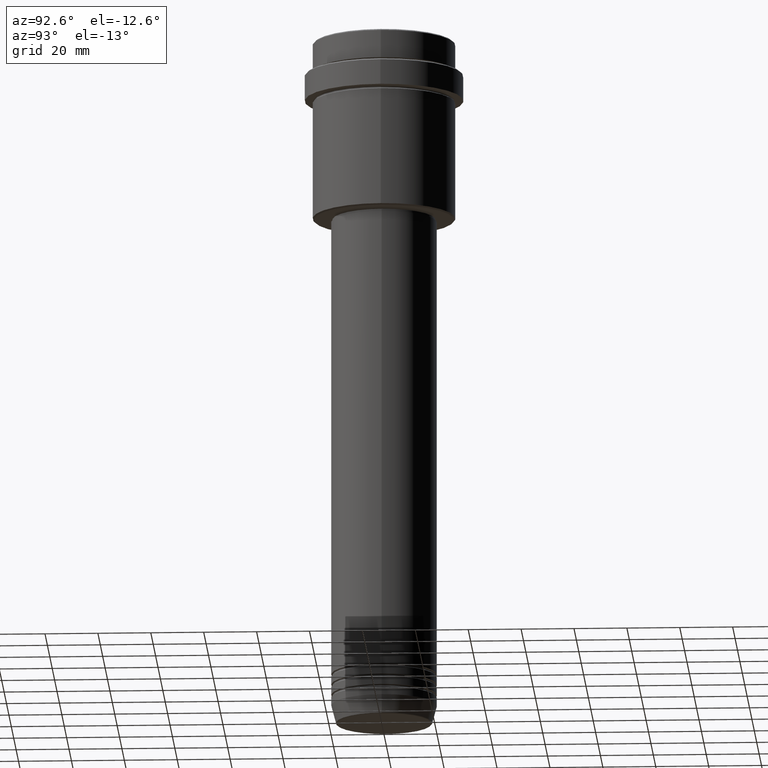
[diagram: clean part render]
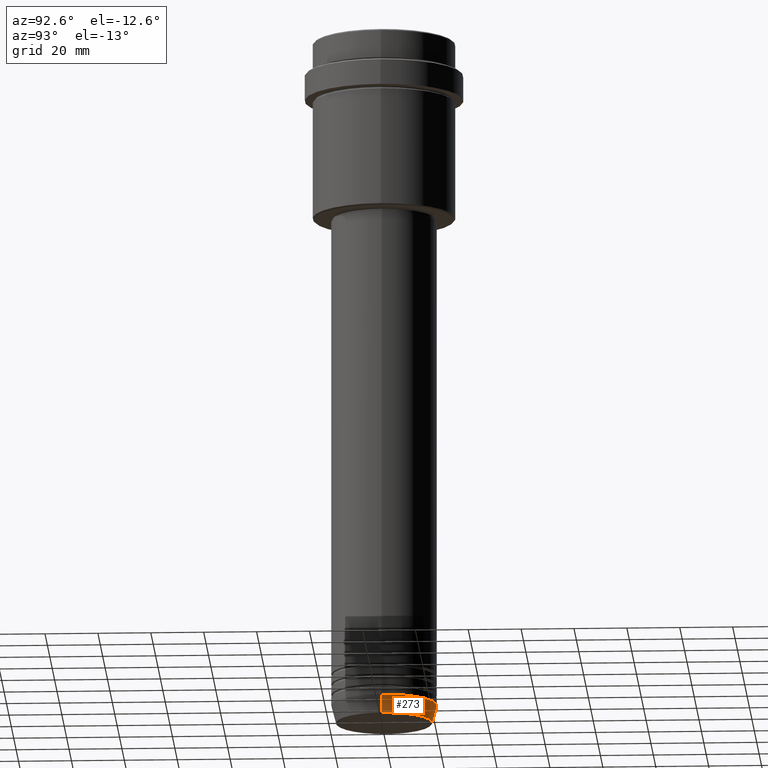
[diagram: same view with one face highlighted and labeled with its STEP entity id]
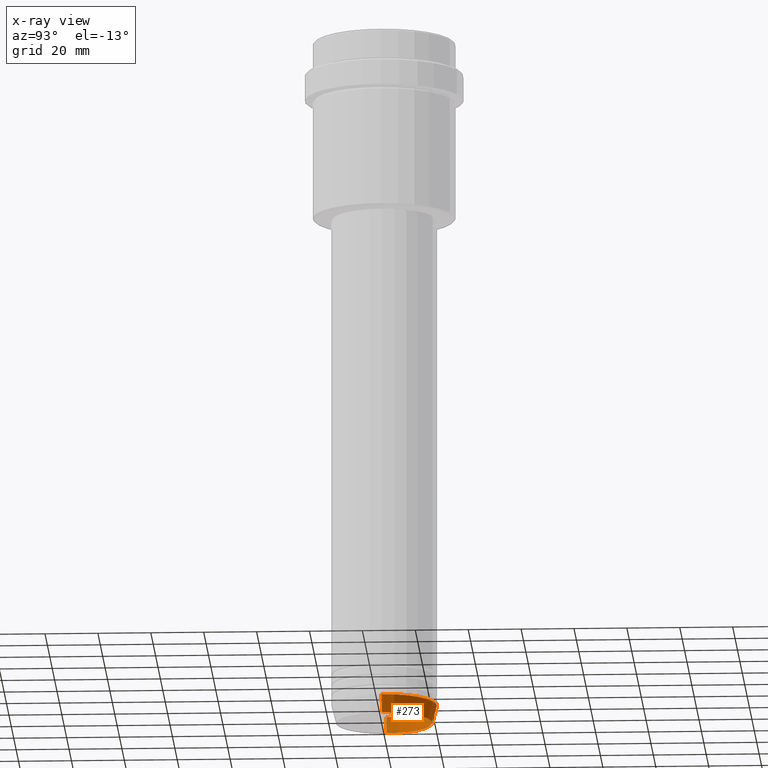
[diagram: x-ray of the same camera — body ghosted, the highlighted face saturated]
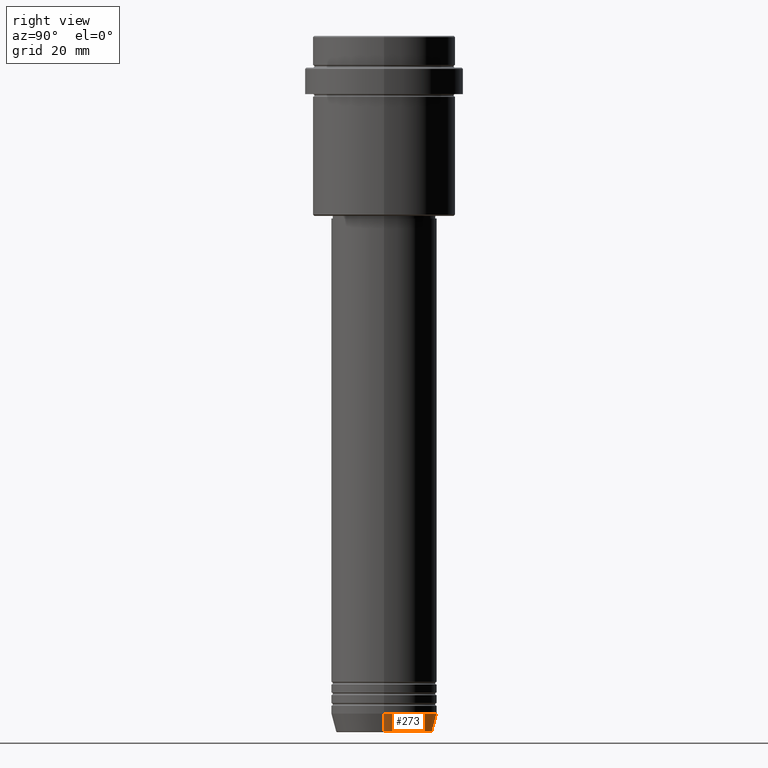
[diagram: same view with one face highlighted and labeled with its STEP entity id]
A machine part, auxiliary view. The second image highlights one B-rep face of the part: STEP entity #273.
The next image is the same camera in x-ray: the body ghosted, the highlighted face saturated — about 2% of this face is hidden behind the body in this view.
A second angle (right view) of the same face is appended — the face is thin or edge-on in the first view.
In plain terms, the highlighted conical surface has half-angle 15 deg.
Its self-contained STEP definition (entity closure, byte-faithful):
#27 = CARTESIAN_POINT ( 'NONE',  ( -20.00000000000000000, 2.449293598294706513E-15, -256.0000000000000000 ) ) ;
#102 = ORIENTED_EDGE ( 'NONE', *, *, #379, .T. ) ;
#131 = CARTESIAN_POINT ( 'NONE',  ( 20.00000000000000000, 0.000000000000000000, -256.0000000000000000 ) ) ;
#150 = DIRECTION ( 'NONE',  ( 1.000000000000000000, 0.000000000000000000, 0.000000000000000000 ) ) ;
#258 = CARTESIAN_POINT ( 'NONE',  ( 0.000000000000000000, 0.000000000000000000, -256.0000000000000000 ) ) ;
#273 = ADVANCED_FACE ( 'NONE', ( #981 ), #904, .T. ) ;
#307 = VERTEX_POINT ( 'NONE', #548 ) ;
#361 = EDGE_CURVE ( 'NONE', #363, #307, #1207, .T. ) ;
#363 = VERTEX_POINT ( 'NONE', #131 ) ;
#379 = EDGE_CURVE ( 'NONE', #743, #307, #580, .T. ) ;
#390 = DIRECTION ( 'NONE',  ( 1.000000000000000000, 0.000000000000000000, 0.000000000000000000 ) ) ;
#466 = DIRECTION ( 'NONE',  ( -0.2588190451025213501, 3.169619151431772337E-17, 0.9659258262890680902 ) ) ;
#472 = EDGE_CURVE ( 'NONE', #1278, #743, #497, .T. ) ;
#497 = CIRCLE ( 'NONE', #906, 18.22365507213718772 ) ;
#548 = CARTESIAN_POINT ( 'NONE',  ( -20.00000000000000000, 2.449293598294706513E-15, -256.0000000000000000 ) ) ;
#580 = LINE ( 'NONE', #27, #1378 ) ;
#620 = ORIENTED_EDGE ( 'NONE', *, *, #361, .F. ) ;
#628 = DIRECTION ( 'NONE',  ( -0.000000000000000000, -0.000000000000000000, 1.000000000000000000 ) ) ;
#728 = DIRECTION ( 'NONE',  ( 0.2588190451025213501, 0.000000000000000000, 0.9659258262890680902 ) ) ;
#743 = VERTEX_POINT ( 'NONE', #1134 ) ;
#760 = DIRECTION ( 'NONE',  ( 1.000000000000000000, 0.000000000000000000, 0.000000000000000000 ) ) ;
#825 = ORIENTED_EDGE ( 'NONE', *, *, #472, .T. ) ;
#843 = CARTESIAN_POINT ( 'NONE',  ( 20.00000000000000000, 0.000000000000000000, -256.0000000000000000 ) ) ;
#859 = ORIENTED_EDGE ( 'NONE', *, *, #911, .F. ) ;
#861 = AXIS2_PLACEMENT_3D ( 'NONE', #1300, #1076, #760 ) ;
#898 = CARTESIAN_POINT ( 'NONE',  ( 18.22365507213718772, 0.000000000000000000, -262.6294095225512706 ) ) ;
#904 = CONICAL_SURFACE ( 'NONE', #861, 20.00000000000000000, 0.2617993877991500740 ) ;
#906 = AXIS2_PLACEMENT_3D ( 'NONE', #1051, #628, #390 ) ;
#911 = EDGE_CURVE ( 'NONE', #1278, #363, #1193, .T. ) ;
#981 = FACE_OUTER_BOUND ( 'NONE', #1010, .T. ) ;
#1010 = EDGE_LOOP ( 'NONE', ( #825, #102, #620, #859 ) ) ;
#1051 = CARTESIAN_POINT ( 'NONE',  ( 0.000000000000000000, 0.000000000000000000, -262.6294095225512706 ) ) ;
#1076 = DIRECTION ( 'NONE',  ( -0.000000000000000000, -0.000000000000000000, 1.000000000000000000 ) ) ;
#1134 = CARTESIAN_POINT ( 'NONE',  ( -18.22365507213718772, 2.340523841790264718E-15, -262.6294095225512706 ) ) ;
#1172 = AXIS2_PLACEMENT_3D ( 'NONE', #258, #1331, #150 ) ;
#1193 = LINE ( 'NONE', #843, #1290 ) ;
#1207 = CIRCLE ( 'NONE', #1172, 20.00000000000000000 ) ;
#1278 = VERTEX_POINT ( 'NONE', #898 ) ;
#1290 = VECTOR ( 'NONE', #728, 1000.000000000000000 ) ;
#1300 = CARTESIAN_POINT ( 'NONE',  ( 0.000000000000000000, 0.000000000000000000, -256.0000000000000000 ) ) ;
#1331 = DIRECTION ( 'NONE',  ( -0.000000000000000000, -0.000000000000000000, 1.000000000000000000 ) ) ;
#1378 = VECTOR ( 'NONE', #466, 1000.000000000000000 ) ;